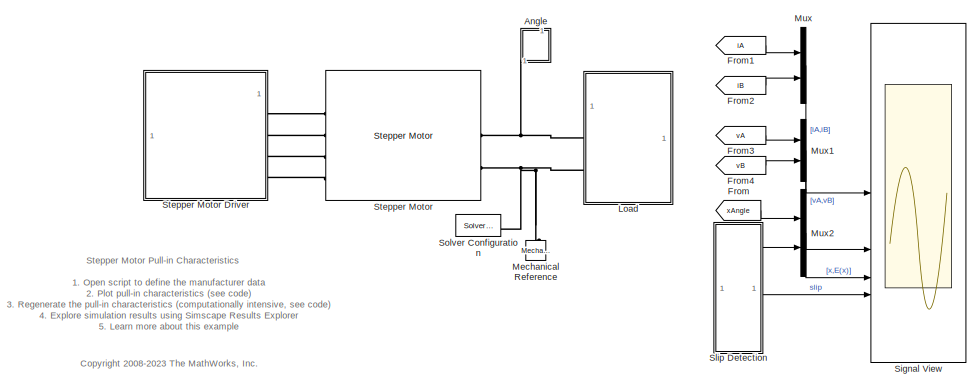
[diagram: root canvas - part 1/2, top left region]
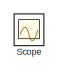
[diagram: root canvas - part 2/2, bottom right region]
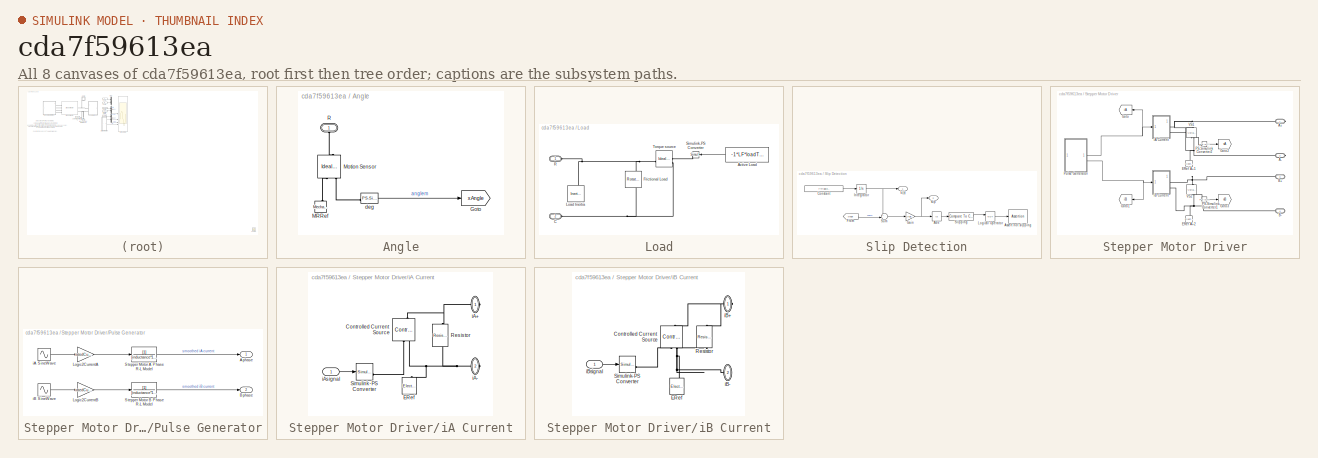
[diagram: thumbnail index - all 8 canvases of the model, root first then tree order]
MODEL slx_cda7f59613ea
KIND model
CONFIG AbsTol = 1e-3
CONFIG EnableMultiTasking = on
CONFIG FixedStep = 0.001
CONFIG MaxStep = 1/(4*Num_Multi_Step*f*8)
CONFIG MinStep = auto
CONFIG PreLoadFcn = % Parameterize the stepper motor;\nStepperMotorPullInData;
CONFIG RelTol = 1e-3
CONFIG SampleTimeConstraint = Unconstrained
CONFIG SolverName = ode23t
CONFIG StartTime = 0.0
CONFIG StopTime = time_simulation
BLOCK [SubSystem] Angle
  NameLocation = right
BLOCK [Goto] Angle/Goto
  GotoTag = xAngle
  TagVisibility = global
BLOCK [Reference] Angle/MRRef  REF=fl_lib/Mechanical/Rotational Elements/Mechanical
Rotational Reference
  NameLocation = left
  SourceBlock = fl_lib/Mechanical/Rotational Elements/Mechanical\nRotational Reference
  SourceType = Mechanical\nRotational Reference
BLOCK [Reference] Angle/Motion Sensor  REF=fl_lib/Mechanical/Mechanical Sensors/Ideal Rotational
Motion Sensor
  NameLocation = left
  SourceBlock = fl_lib/Mechanical/Mechanical Sensors/Ideal Rotational\nMotion Sensor
  SourceType = Ideal Rotational\nMotion Sensor
BLOCK [PMIOPort] Angle/R
  Side = Left
BLOCK [Reference] Angle/deg  REF=nesl_utility/PS-Simulink
Converter
  SourceBlock = nesl_utility/PS-Simulink\nConverter
  SourceType = PS-Simulink\nConverter
BLOCK [From] From
  GotoTag = xAngle
  TagVisibility = global
BLOCK [From] From1
  GotoTag = iA
  TagVisibility = global
BLOCK [From] From2
  GotoTag = iB
  TagVisibility = global
BLOCK [From] From3
  GotoTag = vA
  TagVisibility = global
BLOCK [From] From4
  GotoTag = vB
  TagVisibility = global
BLOCK [SubSystem] Load
BLOCK [Constant] Load/Active Load
  Value = -1*LF*loadTorque*1e-3
BLOCK [PMIOPort] Load/C
  Port = 2
  Side = Left
BLOCK [Reference] Load/Frictional Load  REF=fl_lib/Mechanical/Rotational Elements/Rotational Friction
  NameLocation = left
  SourceBlock = fl_lib/Mechanical/Rotational Elements/Rotational Friction
  SourceType = Rotational Friction
BLOCK [Reference] Load/Load Inertia  REF=fl_lib/Mechanical/Rotational Elements/Inertia
  SourceBlock = fl_lib/Mechanical/Rotational Elements/Inertia
  SourceType = Inertia
BLOCK [PMIOPort] Load/R
  Side = Left
BLOCK [Reference] Load/Simulink-PS Converter  REF=nesl_utility/Simulink-PS
Converter
  NameLocation = top
  SourceBlock = nesl_utility/Simulink-PS\nConverter
  SourceType = Simulink-PS\nConverter
BLOCK [Reference] Load/Torque source  REF=fl_lib/Mechanical/Mechanical Sources/Ideal Torque Source
  SourceBlock = fl_lib/Mechanical/Mechanical Sources/Ideal Torque Source
  SourceType = Ideal Torque Source
BLOCK [Reference] Mechanical Reference  REF=fl_lib/Mechanical/Rotational Elements/Mechanical
Rotational Reference
  NameLocation = left
  SourceBlock = fl_lib/Mechanical/Rotational Elements/Mechanical\nRotational Reference
  SourceType = Mechanical\nRotational Reference
BLOCK [Mux] Mux
  DisplayOption = bar
  Inputs = 2
BLOCK [Mux] Mux1
  DisplayOption = bar
  Inputs = 2
BLOCK [Mux] Mux2
  DisplayOption = bar
  Inputs = 2
BLOCK [Scope] Scope
  Floating = off
  IOType = viewer
  NumInputPorts = 1
  ScopeSpecificationString = Simulink.scopes.TimeScopeBlockCfg('CurrentConfiguration', extmgr.ConfigurationSet(extmgr.Configuration('Core','General UI',true),extmgr.Configuration('Core','Source UI',true),extmgr.Configuration('Sources','WiredSimulink',true,'DataLoggingVariableName','ScopeData1'),extmgr.Configuration('Visuals','Time Domain',true,'SerializedDisplays',{struct('MinYLimReal','-0.0002','MaxYLimReal','0.0018','YLabel...<+1393ch>
BLOCK [Scope] Signal View
  Floating = off
  NumInputPorts = 4
  ScopeSpecificationString = Simulink.scopes.TimeScopeBlockCfg('CurrentConfiguration', extmgr.ConfigurationSet(extmgr.Configuration('Core','General UI',true),extmgr.Configuration('Core','Source UI',true),extmgr.Configuration('Sources','WiredSimulink',true,'DataLoggingVariableName','ScopeData1','DataLoggingSaveFormat','StructureWithTime','DataLoggingDecimation','1'),extmgr.Configuration('Visuals','Time Domain',true,'Serialized...<+3827ch>
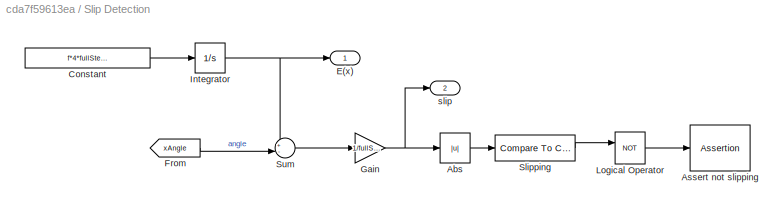
BLOCK [SubSystem] Slip Detection
BLOCK [Abs] Slip Detection/Abs
  SaturateOnIntegerOverflow = off
  ZeroCross = off
BLOCK [Assertion] Slip Detection/Assert not slipping
  AssertionFailFcn = disp('Stepper slipped')
BLOCK [Constant] Slip Detection/Constant
  Value = f*4*fullStepSize
BLOCK [Outport] Slip Detection/E(x)
  VectorParamsAs1DForOutWhenUnconnected = off
BLOCK [From] Slip Detection/From
  GotoTag = xAngle
  TagVisibility = global
BLOCK [Gain] Slip Detection/Gain
  Gain = 1/fullStepSize
BLOCK [Integrator] Slip Detection/Integrator
BLOCK [Logic] Slip Detection/Logical Operator
  AllPortsSameDT = off
  Operator = NOT
  OutDataTypeStr = boolean
BLOCK [Reference] Slip Detection/Slipping  REF=simulink/Logic and Bit
Operations/Compare
To Constant
  SourceBlock = simulink/Logic and Bit\nOperations/Compare\nTo Constant
  SourceType = Compare To Constant
BLOCK [Sum] Slip Detection/Sum
  Inputs = +-|
BLOCK [Outport] Slip Detection/slip
  Port = 2
  VectorParamsAs1DForOutWhenUnconnected = off
BLOCK [Reference] Solver Configuration  REF=nesl_utility/Solver
Configuration
  SourceBlock = nesl_utility/Solver\nConfiguration
  SourceType = Solver\nConfiguration
BLOCK [Reference] Stepper Motor  REF=ee_lib/Electromechanical/Reluctance & Stepper/Stepper Motor
  SourceBlock = ee_lib/Electromechanical/Reluctance & Stepper/Stepper Motor
  SourceType = Stepper Motor
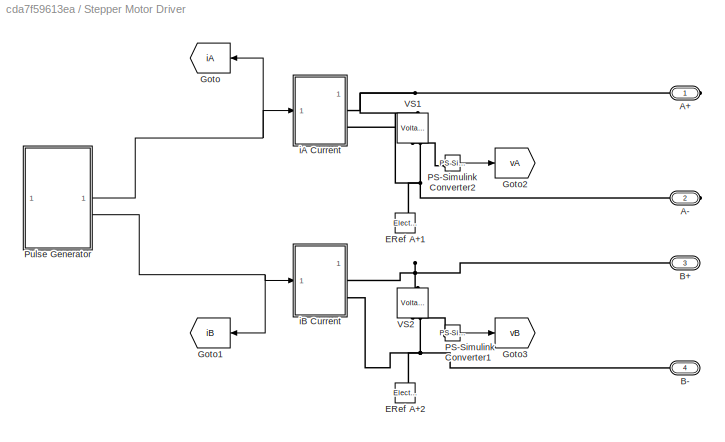
BLOCK [SubSystem] Stepper Motor Driver
BLOCK [PMIOPort] Stepper Motor Driver/A+
  Side = Right
BLOCK [PMIOPort] Stepper Motor Driver/A-
  Port = 2
  Side = Right
BLOCK [PMIOPort] Stepper Motor Driver/B+
  Port = 3
  Side = Right
BLOCK [PMIOPort] Stepper Motor Driver/B-
  Port = 4
  Side = Right
BLOCK [Reference] Stepper Motor Driver/ERef A+1  REF=fl_lib/Electrical/Electrical Elements/Electrical Reference
  SourceBlock = fl_lib/Electrical/Electrical Elements/Electrical Reference
  SourceType = Electrical Reference
BLOCK [Reference] Stepper Motor Driver/ERef A+2  REF=fl_lib/Electrical/Electrical Elements/Electrical Reference
  SourceBlock = fl_lib/Electrical/Electrical Elements/Electrical Reference
  SourceType = Electrical Reference
BLOCK [Goto] Stepper Motor Driver/Goto
  GotoTag = iA
  NameLocation = top
  TagVisibility = global
BLOCK [Goto] Stepper Motor Driver/Goto1
  GotoTag = iB
  NameLocation = top
  TagVisibility = global
BLOCK [Goto] Stepper Motor Driver/Goto2
  GotoTag = vA
  TagVisibility = global
BLOCK [Goto] Stepper Motor Driver/Goto3
  GotoTag = vB
  TagVisibility = global
BLOCK [Reference] Stepper Motor Driver/PS-Simulink Converter1  REF=nesl_utility/PS-Simulink
Converter
  SourceBlock = nesl_utility/PS-Simulink\nConverter
  SourceType = PS-Simulink\nConverter
BLOCK [Reference] Stepper Motor Driver/PS-Simulink Converter2  REF=nesl_utility/PS-Simulink
Converter
  SourceBlock = nesl_utility/PS-Simulink\nConverter
  SourceType = PS-Simulink\nConverter
BLOCK [SubSystem] Stepper Motor Driver/Pulse Generator
BLOCK [Outport] Stepper Motor Driver/Pulse Generator/Aphase
  VectorParamsAs1DForOutWhenUnconnected = off
BLOCK [Outport] Stepper Motor Driver/Pulse Generator/Bphase
  Port = 2
  VectorParamsAs1DForOutWhenUnconnected = off
BLOCK [Gain] Stepper Motor Driver/Pulse Generator/Logic2CurrentA
  Gain = ratedCurrent*CF
BLOCK [Gain] Stepper Motor Driver/Pulse Generator/Logic2CurrentB
  Gain = ratedCurrent*CF
BLOCK [TransferFcn] Stepper Motor Driver/Pulse Generator/Stepper Motor A Phase R-L Model
  Denominator = [inductance*1e-3/(driveRampRate*resistance) 1]
BLOCK [TransferFcn] Stepper Motor Driver/Pulse Generator/Stepper Motor B Phase R-L Model
  Denominator = [inductance*1e-3/(driveRampRate*resistance) 1]
BLOCK [Sin] Stepper Motor Driver/Pulse Generator/iA SineWave
  Frequency = 2*pi*f
  Phase = pi/2
  SampleTime = 1/(f*4*numMicroStep)
BLOCK [Sin] Stepper Motor Driver/Pulse Generator/iB SineWave
  Frequency = 2*pi*f
  SampleTime = 1/(f*4*numMicroStep)
BLOCK [Reference] Stepper Motor Driver/VS1  REF=fl_lib/Electrical/Electrical Sensors/Voltage Sensor
  SourceBlock = fl_lib/Electrical/Electrical Sensors/Voltage Sensor
  SourceType = Voltage Sensor
BLOCK [Reference] Stepper Motor Driver/VS2  REF=fl_lib/Electrical/Electrical Sensors/Voltage Sensor
  SourceBlock = fl_lib/Electrical/Electrical Sensors/Voltage Sensor
  SourceType = Voltage Sensor
BLOCK [SubSystem] Stepper Motor Driver/iA Current
BLOCK [Reference] Stepper Motor Driver/iA Current/Controlled Current Source  REF=fl_lib/Electrical/Electrical Sources/Controlled Current
Source
  SourceBlock = fl_lib/Electrical/Electrical Sources/Controlled Current\nSource
  SourceType = Controlled Current\nSource
BLOCK [Reference] Stepper Motor Driver/iA Current/ERef  REF=fl_lib/Electrical/Electrical Elements/Electrical Reference
  SourceBlock = fl_lib/Electrical/Electrical Elements/Electrical Reference
  SourceType = Electrical Reference
BLOCK [Reference] Stepper Motor Driver/iA Current/Resistor  REF=fl_lib/Electrical/Electrical Elements/Resistor
  NameLocation = left
  SourceBlock = fl_lib/Electrical/Electrical Elements/Resistor
  SourceType = Resistor
BLOCK [Reference] Stepper Motor Driver/iA Current/Simulink-PS Converter  REF=nesl_utility/Simulink-PS
Converter
  SourceBlock = nesl_utility/Simulink-PS\nConverter
  SourceType = Simulink-PS\nConverter
BLOCK [PMIOPort] Stepper Motor Driver/iA Current/iA+
  Side = Right
BLOCK [PMIOPort] Stepper Motor Driver/iA Current/iA-
  Port = 2
  Side = Right
BLOCK [Inport] Stepper Motor Driver/iA Current/iAsignal
BLOCK [SubSystem] Stepper Motor Driver/iB Current
BLOCK [Reference] Stepper Motor Driver/iB Current/Controlled Current Source  REF=fl_lib/Electrical/Electrical Sources/Controlled Current
Source
  SourceBlock = fl_lib/Electrical/Electrical Sources/Controlled Current\nSource
  SourceType = Controlled Current\nSource
BLOCK [Reference] Stepper Motor Driver/iB Current/ERef  REF=fl_lib/Electrical/Electrical Elements/Electrical Reference
  SourceBlock = fl_lib/Electrical/Electrical Elements/Electrical Reference
  SourceType = Electrical Reference
BLOCK [Reference] Stepper Motor Driver/iB Current/Resistor  REF=fl_lib/Electrical/Electrical Elements/Resistor
  NameLocation = left
  SourceBlock = fl_lib/Electrical/Electrical Elements/Resistor
  SourceType = Resistor
BLOCK [Reference] Stepper Motor Driver/iB Current/Simulink-PS Converter  REF=nesl_utility/Simulink-PS
Converter
  SourceBlock = nesl_utility/Simulink-PS\nConverter
  SourceType = Simulink-PS\nConverter
BLOCK [PMIOPort] Stepper Motor Driver/iB Current/iB+
  Side = Right
BLOCK [PMIOPort] Stepper Motor Driver/iB Current/iB-
  Port = 2
  Side = Right
BLOCK [Inport] Stepper Motor Driver/iB Current/iBsignal
ANNOTATION (root): 1. Open script to define the manufacturer data 2. Plot pull-in characteristics ( see code ) 3. Regenerate the pull-in characteristics (computationally intensive, see code ) 4. Explore simulation results using Simscape Results Explorer 5. Learn more about this example
ANNOTATION (root): <copyright redacted>
ANNOTATION (root): Stepper Motor Pull-in Characteristics
LINE Angle/deg:1 -> Angle/Goto:1
LINE From1:1 -> Mux:1
LINE From2:1 -> Mux:2
LINE From3:1 -> Mux1:1
LINE From4:1 -> Mux1:2
LINE From:1 -> Mux2:1
LINE Load/Active Load:1 -> Load/Simulink-PS Converter:1
LINE Mux1:1 -> Signal View:2
LINE Mux2:1 -> Signal View:3
LINE Mux:1 -> Signal View:1
LINE Slip Detection/Abs:1 -> Slip Detection/Slipping:1
LINE Slip Detection/Constant:1 -> Slip Detection/Integrator:1
LINE Slip Detection/From:1 -> Slip Detection/Sum:2
NET Slip Detection/Gain:1 -> Slip Detection/Abs:1, Slip Detection/slip:1
NET Slip Detection/Integrator:1 -> Slip Detection/E(x):1, Slip Detection/Sum:1
LINE Slip Detection/Logical Operator:1 -> Slip Detection/Assert not slipping:1
LINE Slip Detection/Slipping:1 -> Slip Detection/Logical Operator:1
LINE Slip Detection/Sum:1 -> Slip Detection/Gain:1
LINE Slip Detection:1 -> Mux2:2
LINE Slip Detection:2 -> Signal View:4
LINE Stepper Motor Driver/PS-Simulink Converter1:1 -> Stepper Motor Driver/Goto3:1
LINE Stepper Motor Driver/PS-Simulink Converter2:1 -> Stepper Motor Driver/Goto2:1
LINE Stepper Motor Driver/Pulse Generator/Logic2CurrentA:1 -> Stepper Motor Driver/Pulse Generator/Stepper Motor A Phase R-L Model:1
LINE Stepper Motor Driver/Pulse Generator/Logic2CurrentB:1 -> Stepper Motor Driver/Pulse Generator/Stepper Motor B Phase R-L Model:1
LINE Stepper Motor Driver/Pulse Generator/Stepper Motor A Phase R-L Model:1 -> Stepper Motor Driver/Pulse Generator/Aphase:1
LINE Stepper Motor Driver/Pulse Generator/Stepper Motor B Phase R-L Model:1 -> Stepper Motor Driver/Pulse Generator/Bphase:1
LINE Stepper Motor Driver/Pulse Generator/iA SineWave:1 -> Stepper Motor Driver/Pulse Generator/Logic2CurrentA:1
LINE Stepper Motor Driver/Pulse Generator/iB SineWave:1 -> Stepper Motor Driver/Pulse Generator/Logic2CurrentB:1
NET Stepper Motor Driver/Pulse Generator:1 -> Stepper Motor Driver/Goto:1, Stepper Motor Driver/iA Current:1
NET Stepper Motor Driver/Pulse Generator:2 -> Stepper Motor Driver/Goto1:1, Stepper Motor Driver/iB Current:1
LINE Stepper Motor Driver/iA Current/iAsignal:1 -> Stepper Motor Driver/iA Current/Simulink-PS Converter:1
LINE Stepper Motor Driver/iB Current/iBsignal:1 -> Stepper Motor Driver/iB Current/Simulink-PS Converter:1
PLINE Angle/MRRef:LConn1 -- Angle/Motion Sensor:RConn1
PLINE Angle/Motion Sensor:LConn1 -- Angle/R:RConn1
PLINE Angle/Motion Sensor:RConn3 -- Angle/deg:LConn1
PNET net1: Angle:LConn1 -- Load:LConn1 -- Stepper Motor:RConn1
PNET net2: Load/C:RConn1 -- Load/Frictional Load:RConn1 -- Load/Torque source:RConn2
PNET net3: Load/Frictional Load:LConn1 -- Load/Load Inertia:LConn1 -- Load/R:RConn1 -- Load/Torque source:LConn1
PLINE Load/Simulink-PS Converter:RConn1 -- Load/Torque source:RConn1
PNET net4: Load:LConn2 -- Mechanical Reference:LConn1 -- Solver Configuration:RConn1 -- Stepper Motor:RConn2
PNET net5: Stepper Motor Driver/A+:RConn1 -- Stepper Motor Driver/VS1:LConn1 -- Stepper Motor Driver/iA Current:RConn1
PNET net6: Stepper Motor Driver/A-:RConn1 -- Stepper Motor Driver/ERef A+1:LConn1 -- Stepper Motor Driver/VS1:RConn2 -- Stepper Motor Driver/iA Current:RConn2
PNET net7: Stepper Motor Driver/B+:RConn1 -- Stepper Motor Driver/VS2:LConn1 -- Stepper Motor Driver/iB Current:RConn1
PNET net8: Stepper Motor Driver/B-:RConn1 -- Stepper Motor Driver/ERef A+2:LConn1 -- Stepper Motor Driver/VS2:RConn2 -- Stepper Motor Driver/iB Current:RConn2
PLINE Stepper Motor Driver/PS-Simulink Converter1:LConn1 -- Stepper Motor Driver/VS2:RConn1
PLINE Stepper Motor Driver/PS-Simulink Converter2:LConn1 -- Stepper Motor Driver/VS1:RConn1
PNET net9: Stepper Motor Driver/iA Current/Controlled Current Source:LConn1 -- Stepper Motor Driver/iA Current/Resistor:LConn1 -- Stepper Motor Driver/iA Current/iA+:RConn1
PLINE Stepper Motor Driver/iA Current/Controlled Current Source:RConn1 -- Stepper Motor Driver/iA Current/Simulink-PS Converter:RConn1
PNET net10: Stepper Motor Driver/iA Current/Controlled Current Source:RConn2 -- Stepper Motor Driver/iA Current/ERef:LConn1 -- Stepper Motor Driver/iA Current/Resistor:RConn1 -- Stepper Motor Driver/iA Current/iA-:RConn1
PNET net11: Stepper Motor Driver/iB Current/Controlled Current Source:LConn1 -- Stepper Motor Driver/iB Current/Resistor:LConn1 -- Stepper Motor Driver/iB Current/iB+:RConn1
PLINE Stepper Motor Driver/iB Current/Controlled Current Source:RConn1 -- Stepper Motor Driver/iB Current/Simulink-PS Converter:RConn1
PNET net12: Stepper Motor Driver/iB Current/Controlled Current Source:RConn2 -- Stepper Motor Driver/iB Current/ERef:LConn1 -- Stepper Motor Driver/iB Current/Resistor:RConn1 -- Stepper Motor Driver/iB Current/iB-:RConn1
PLINE Stepper Motor Driver:RConn1 -- Stepper Motor:LConn1
PLINE Stepper Motor Driver:RConn2 -- Stepper Motor:LConn2
PLINE Stepper Motor Driver:RConn3 -- Stepper Motor:LConn3
PLINE Stepper Motor Driver:RConn4 -- Stepper Motor:LConn4
note: NET lines group one-source signal fan-out (src -> all destinations, sorted); 1:1 wires keep LINE; PNET lines group multi-terminal physical nets as a canonical sorted terminal list (undirected conserving connections); 2-terminal nets keep the pairwise PLINE form
